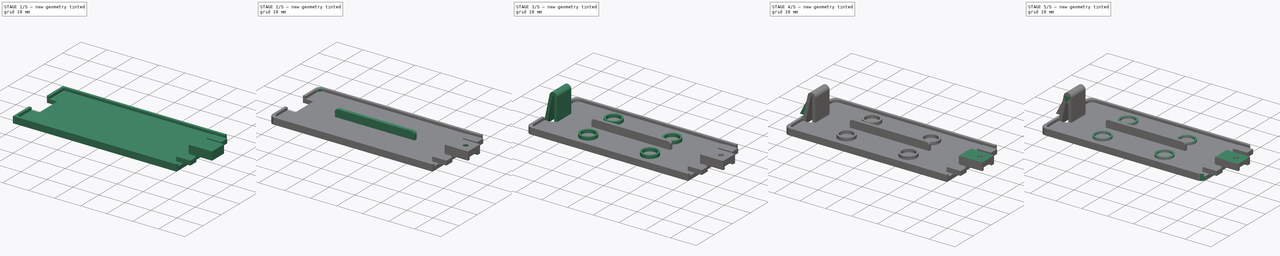
[diagram: build sequence overview — one tinted view per stage of 5, left to right]
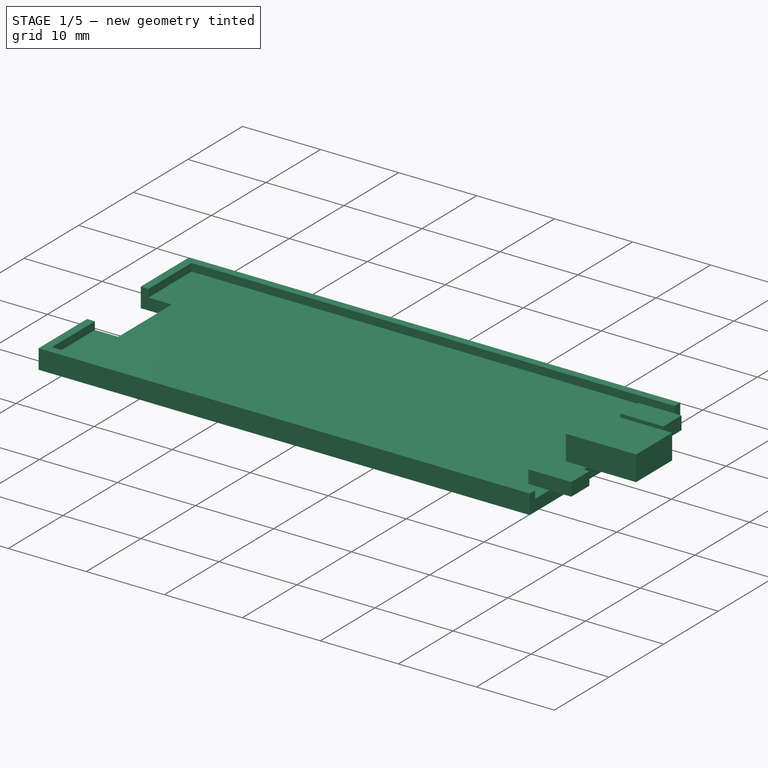
[diagram: stage 1 of 5 — iso view after this stage's code; geometry added in this stage tinted green]
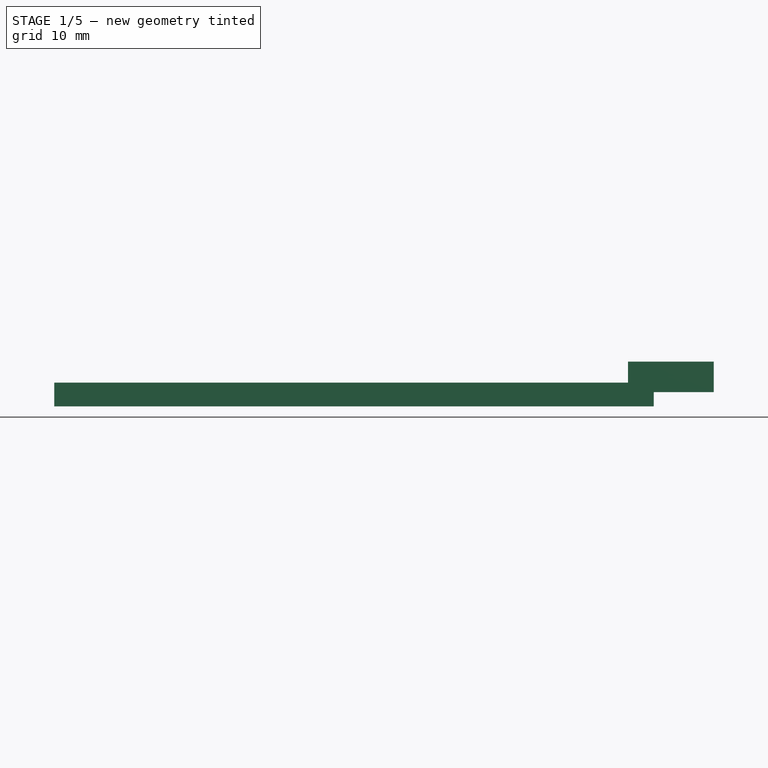
[diagram: stage 1 of 5 — front view after this stage's code; geometry added in this stage tinted green]
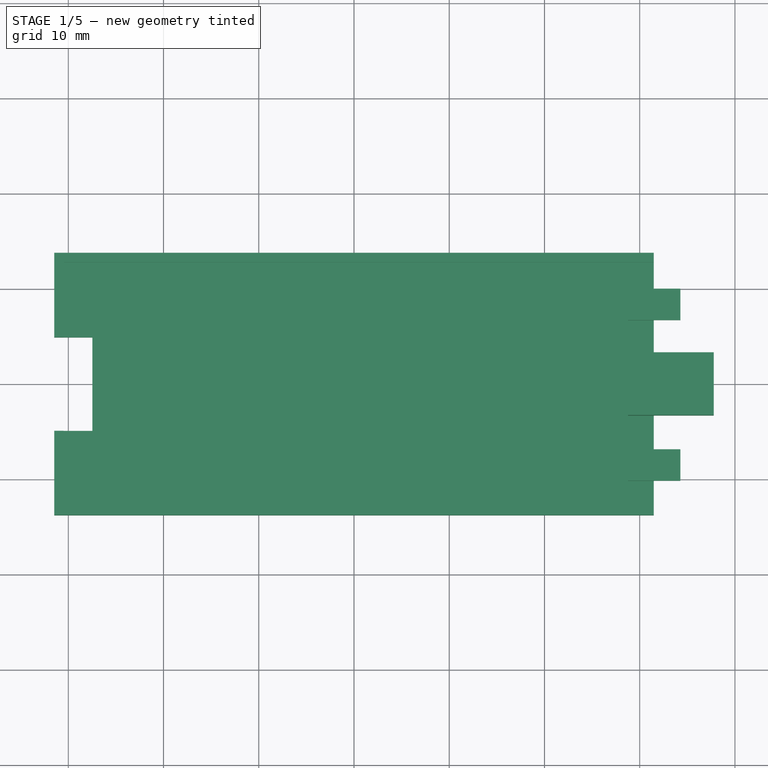
[diagram: stage 1 of 5 — top view after this stage's code; geometry added in this stage tinted green]
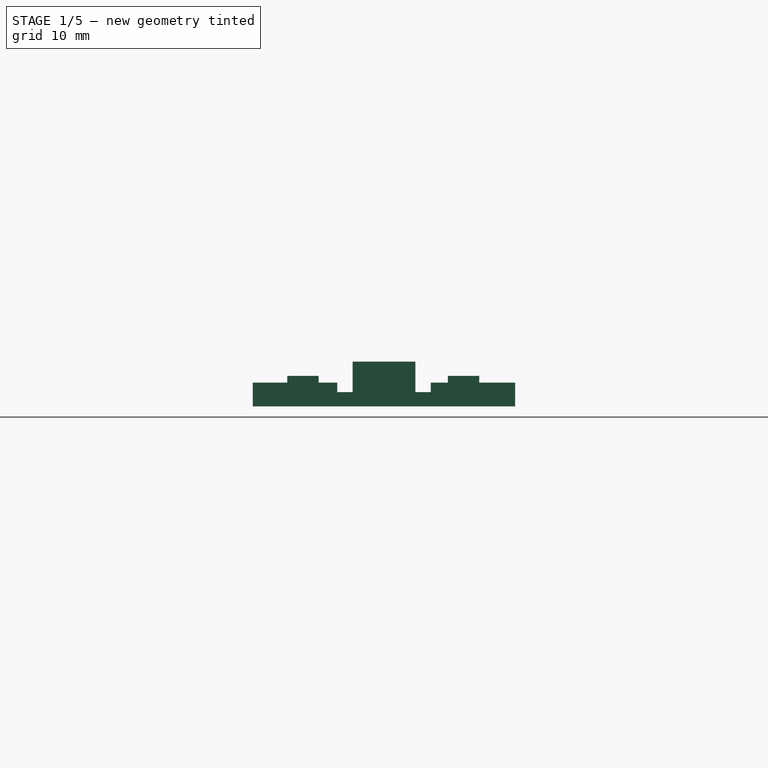
[diagram: stage 1 of 5 — right view after this stage's code; geometry added in this stage tinted green]
FCSTD DOCUMENT  (FreeCAD 0.16R)
Label: tapa
License: All rights reserved
LicenseURL: http://en.wikipedia.org/wiki/All_rights_reserved
objects: Sketcher::SketchObject×22, PartDesign::Pad×11, PartDesign::Pocket×11, PartDesign::Fillet×7
note: 73 computed .brp shape members not serialized (recipe doc carries the construction recipe); baked Part::Feature solids carry a one-line shape summary decoded from their .brp

FEATURE [Sketcher::SketchObject] Sketch
  sketch-geometry (4):
    g0: LineSegment StartX=-31.475 StartY=13.775 StartZ=0 EndX=31.475 EndY=13.775 EndZ=0
    g1: LineSegment StartX=31.475 StartY=13.775 StartZ=0 EndX=31.475 EndY=-13.775 EndZ=0
    g2: LineSegment StartX=31.475 StartY=-13.775 StartZ=0 EndX=-31.475 EndY=-13.775 EndZ=0
    g3: LineSegment StartX=-31.475 StartY=-13.775 StartZ=0 EndX=-31.475 EndY=13.775 EndZ=0
  constraints (12):
    c: Coincident(g0,g1)
    c: Coincident(g1,g2)
    c: Coincident(g2,g3)
    c: Coincident(g3,g0)
    c: Horizontal(g0)
    c: Horizontal(g2)
    c: Vertical(g1)
    c: Vertical(g3)
    c: DistanceY(g3,g3) = 27.55
    c: DistanceX(g0,g0) = 62.95
    c: Symmetric(g2,g1,g-2)
    c: Symmetric(g1,g0,g-1)
FEATURE [PartDesign::Pad] Pad
  Length = 2.5
  Length2 = 100
  Sketch = -> Sketch
  Type = 0
FEATURE [Sketcher::SketchObject] Sketch001
  ExternalGeometry = -> [Pad]
  Placement = pos=(0,0,2.5) rot=(0,0,1;0rad)
  Support = -> Pad [Face6]
  sketch-geometry (4):
    g0: LineSegment StartX=-30.475 StartY=12.775 StartZ=0 EndX=30.475 EndY=12.775 EndZ=0
    g1: LineSegment StartX=30.475 StartY=12.775 StartZ=0 EndX=30.475 EndY=-12.775 EndZ=0
    g2: LineSegment StartX=30.475 StartY=-12.775 StartZ=0 EndX=-30.475 EndY=-12.775 EndZ=0
    g3: LineSegment StartX=-30.475 StartY=-12.775 StartZ=0 EndX=-30.475 EndY=12.775 EndZ=0
  constraints (12):
    c: Coincident(g0,g1)
    c: Coincident(g1,g2)
    c: Coincident(g2,g3)
    c: Coincident(g3,g0)
    c: Horizontal(g0)
    c: Horizontal(g2)
    c: Vertical(g1)
    c: Vertical(g3)
    c: DistanceY(g-4,g2) = 1
    c: DistanceX(g-4,g2) = 1
    c: DistanceY(g0,g-3) = 1
    c: DistanceX(g1,g-4) = 1
FEATURE [PartDesign::Pocket] Pocket
  Length = 1
  Sketch = -> Sketch001
  Type = 0
FEATURE [Sketcher::SketchObject] Sketch002
  ExternalGeometry = -> [Pocket]
  Placement = pos=(0,0,0) rot=(1,0,0;3.14159rad)
  Support = -> Pocket [Face4]
  sketch-geometry (4):
    g0: LineSegment StartX=-35.8099 StartY=4.91 StartZ=0 EndX=-27.475 EndY=4.91 EndZ=0
    g1: LineSegment StartX=-27.475 StartY=4.91 StartZ=0 EndX=-27.475 EndY=-4.91 EndZ=0
    g2: LineSegment StartX=-27.475 StartY=-4.91 StartZ=0 EndX=-35.8099 EndY=-4.91 EndZ=0
    g3: LineSegment StartX=-35.8099 StartY=-4.91 StartZ=0 EndX=-35.8099 EndY=4.91 EndZ=0
  constraints (11):
    c: Coincident(g0,g1)
    c: Coincident(g1,g2)
    c: Coincident(g2,g3)
    c: Coincident(g3,g0)
    c: Horizontal(g0)
    c: Horizontal(g2)
    c: Vertical(g1)
    c: Vertical(g3)
    c: DistanceX(g-3,g1) = 4
    c: DistanceY(g3,g3) = 9.82
    c: Symmetric(g1,g0,g-1)
FEATURE [PartDesign::Pocket] Pocket001
  Length = 5
  Sketch = -> Sketch002
  Type = 0
FEATURE [Sketcher::SketchObject] Sketch003
  ExternalGeometry = -> [Pocket001]
  Placement = pos=(30.475,0,0) rot=(0.57735,-0.57735,-0.57735;2.0944rad)
  Support = -> Pocket001 [Face13]
  sketch-geometry (4):
    g0: LineSegment StartX=-12.775 StartY=5.69858 StartZ=0 EndX=12.775 EndY=5.69858 EndZ=0
    g1: LineSegment StartX=12.775 StartY=5.69858 StartZ=0 EndX=12.775 EndY=1.5 EndZ=0
    g2: LineSegment StartX=12.775 StartY=1.5 StartZ=0 EndX=-12.775 EndY=1.5 EndZ=0
    g3: LineSegment StartX=-12.775 StartY=1.5 StartZ=0 EndX=-12.775 EndY=5.69858 EndZ=0
  constraints (10):
    c: Coincident(g0,g1)
    c: Coincident(g1,g2)
    c: Coincident(g2,g3)
    c: Coincident(g3,g0)
    c: Horizontal(g0)
    c: Horizontal(g2)
    c: Vertical(g1)
    c: Vertical(g3)
    c: Coincident(g-3,g2)
    c: Coincident(g1,g-3)
FEATURE [PartDesign::Pocket] Pocket002
  Length = 5
  Sketch = -> Sketch003
  Type = 0
FEATURE [Sketcher::SketchObject] Sketch004
  ExternalGeometry = -> [Pocket002]
  Placement = pos=(0,0,1.5) rot=(0,0,1;0rad)
  Support = -> Pocket002 [Face15]
  sketch-geometry (12):
    g0: LineSegment StartX=28.775 StartY=10.0059 StartZ=0 EndX=34.275 EndY=10.0059 EndZ=0
    g1: LineSegment StartX=34.275 StartY=10.0059 StartZ=0 EndX=34.275 EndY=6.70589 EndZ=0
    g2: LineSegment StartX=34.275 StartY=6.70589 StartZ=0 EndX=28.775 EndY=6.70589 EndZ=0
    g3: LineSegment StartX=28.775 StartY=6.70589 StartZ=0 EndX=28.775 EndY=10.0059 EndZ=0
    g4: LineSegment StartX=28.775 StartY=-6.86222 StartZ=0 EndX=34.275 EndY=-6.86222 EndZ=0
    g5: LineSegment StartX=34.275 StartY=-6.86222 StartZ=0 EndX=34.275 EndY=-10.1622 EndZ=0
    g6: LineSegment StartX=34.275 StartY=-10.1622 StartZ=0 EndX=28.775 EndY=-10.1622 EndZ=0
    g7: LineSegment StartX=28.775 StartY=-10.1622 StartZ=0 EndX=28.775 EndY=-6.86222 EndZ=0
    g8: LineSegment StartX=28.775 StartY=3.3 StartZ=0 EndX=37.775 EndY=3.3 EndZ=0
    g9: LineSegment StartX=37.775 StartY=3.3 StartZ=0 EndX=37.775 EndY=-3.3 EndZ=0
    g10: LineSegment StartX=37.775 StartY=-3.3 StartZ=0 EndX=28.775 EndY=-3.3 EndZ=0
    g11: LineSegment StartX=28.775 StartY=-3.3 StartZ=0 EndX=28.775 EndY=3.3 EndZ=0
  constraints (34):
    c: Coincident(g0,g1)
    c: Coincident(g1,g2)
    c: Coincident(g2,g3)
    c: Coincident(g3,g0)
    c: Horizontal(g0)
    c: Horizontal(g2)
    c: Vertical(g1)
    c: Vertical(g3)
    c: Coincident(g4,g5)
    c: Coincident(g5,g6)
    c: Coincident(g6,g7)
    c: Coincident(g7,g4)
    c: Horizontal(g4)
    c: Horizontal(g6)
    c: Vertical(g5)
    c: Vertical(g7)
    c: Coincident(g8,g9)
    c: Coincident(g9,g10)
    c: Coincident(g10,g11)
    c: Coincident(g11,g8)
    c: Horizontal(g8)
    c: Horizontal(g10)
    c: Vertical(g9)
    c: Vertical(g11)
    c: DistanceY(g3,g3) = 3.3
    c: DistanceY(g7,g7) = 3.3
    c: DistanceX(g6,g6) = 5.5
    c: DistanceX(g0,g0) = 5.5
    c: DistanceY(g9,g9) = 6.6
    c: DistanceX(g8,g8) = 9
    c: Symmetric(g10,g8,g-1)
    c: DistanceX(g10,g4) = 0
    c: DistanceX(g2,g8) = 0
    c: DistanceX(g-3,g8) = 6.3
FEATURE [PartDesign::Pad] Pad001
  Length = 1.7
  Length2 = 100
  Sketch = -> Sketch004
  Type = 0
FEATURE [Sketcher::SketchObject] Sketch005
  ExternalGeometry = -> [Pad001]
  Placement = pos=(0,0,3.2) rot=(0,0,1;0rad)
  Support = -> Pad001 [Face33]
  sketch-geometry (4):
    g0: LineSegment StartX=28.775 StartY=3.3 StartZ=0 EndX=37.775 EndY=3.3 EndZ=0
    g1: LineSegment StartX=37.775 StartY=3.3 StartZ=0 EndX=37.775 EndY=-3.3 EndZ=0
    g2: LineSegment StartX=37.775 StartY=-3.3 StartZ=0 EndX=28.775 EndY=-3.3 EndZ=0
    g3: LineSegment StartX=28.775 StartY=-3.3 StartZ=0 EndX=28.775 EndY=3.3 EndZ=0
  constraints (10):
    c: Coincident(g0,g1)
    c: Coincident(g1,g2)
    c: Coincident(g2,g3)
    c: Coincident(g3,g0)
    c: Horizontal(g0)
    c: Horizontal(g2)
    c: Vertical(g1)
    c: Vertical(g3)
    c: Coincident(g1,g-4)
    c: Coincident(g0,g-3)
FEATURE [PartDesign::Pad] Pad002
  Length = 1.5
  Length2 = 100
  Sketch = -> Sketch005
  Type = 0
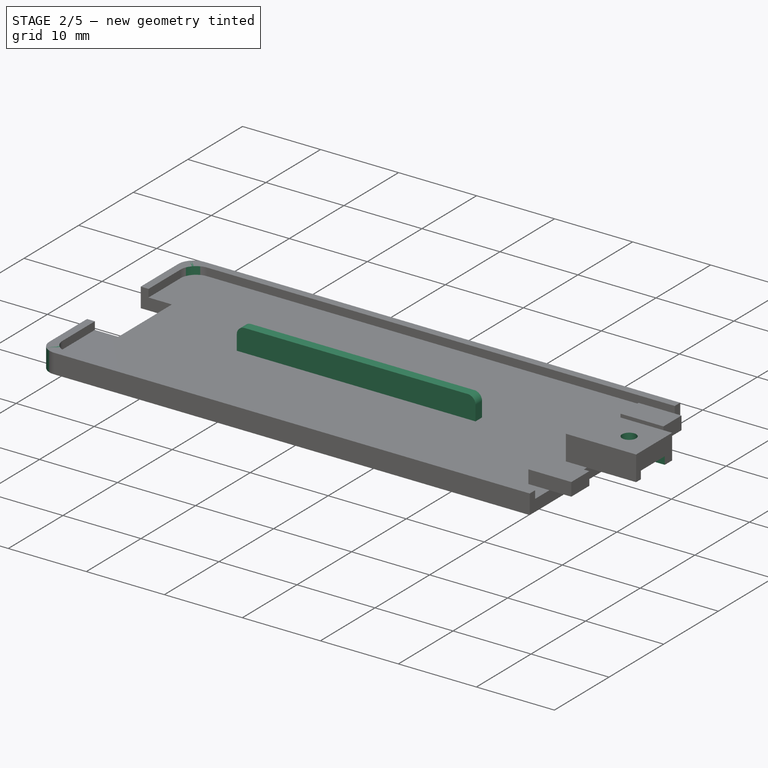
[diagram: stage 2 of 5 — iso view after this stage's code; geometry added in this stage tinted green]
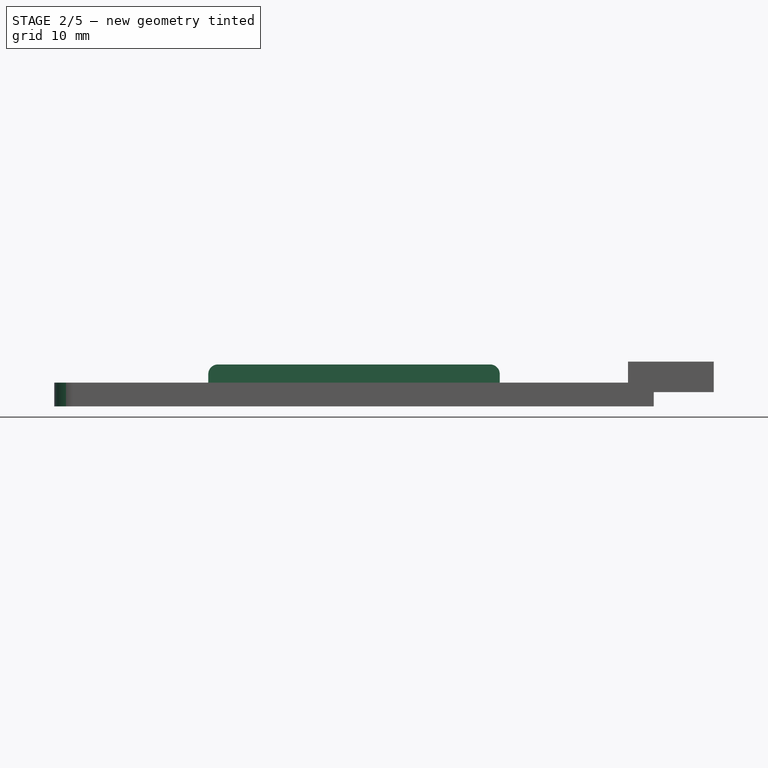
[diagram: stage 2 of 5 — front view after this stage's code; geometry added in this stage tinted green]
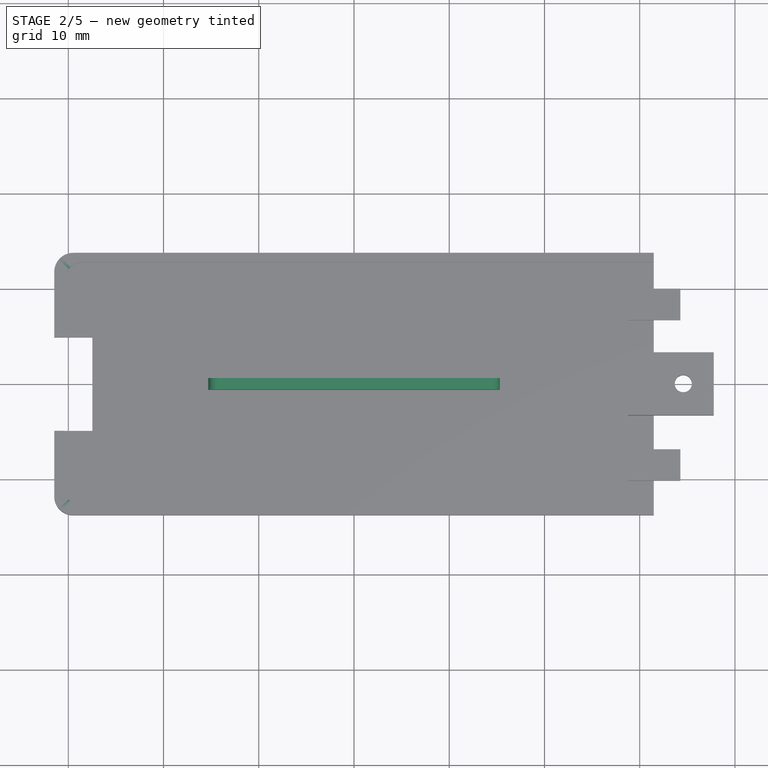
[diagram: stage 2 of 5 — top view after this stage's code; geometry added in this stage tinted green]
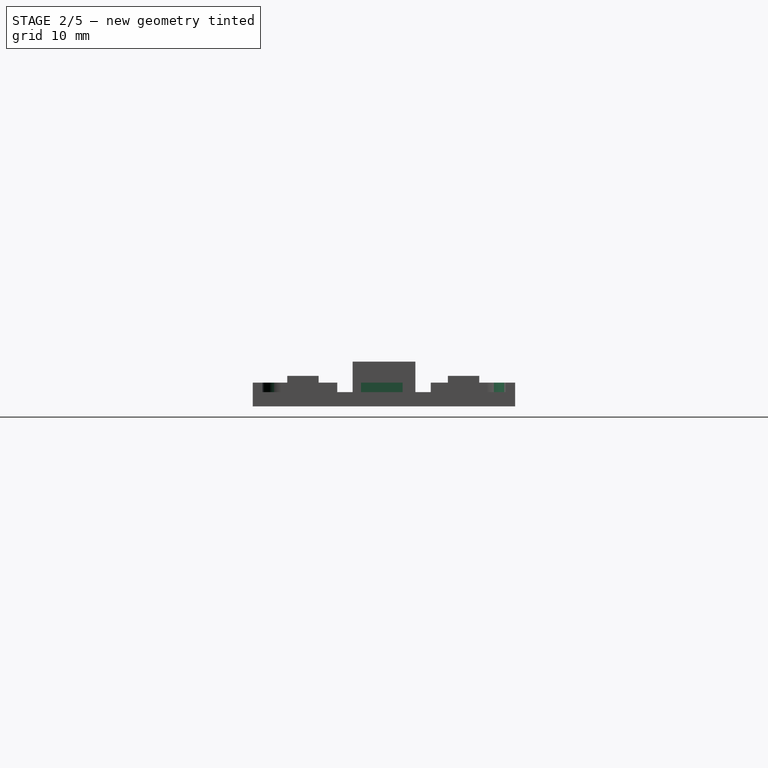
[diagram: stage 2 of 5 — right view after this stage's code; geometry added in this stage tinted green]
FEATURE [Sketcher::SketchObject] Sketch006
  ExternalGeometry = -> [Pad002]
  Placement = pos=(0,0,1.5) rot=(1,0,0;3.14159rad)
  Support = -> Pad002 [Face16]
  sketch-geometry (4):
    g0: LineSegment StartX=31.475 StartY=2.41848 StartZ=0 EndX=42.8898 EndY=2.41848 EndZ=0
    g1: LineSegment StartX=42.8898 StartY=2.41848 StartZ=0 EndX=42.8898 EndY=-1.95152 EndZ=0
    g2: LineSegment StartX=42.8898 StartY=-1.95152 StartZ=0 EndX=31.475 EndY=-1.95152 EndZ=0
    g3: LineSegment StartX=31.475 StartY=-1.95152 StartZ=0 EndX=31.475 EndY=2.41848 EndZ=0
  constraints (10):
    c: Coincident(g0,g1)
    c: Coincident(g1,g2)
    c: Coincident(g2,g3)
    c: Coincident(g3,g0)
    c: Horizontal(g0)
    c: Horizontal(g2)
    c: Vertical(g1)
    c: Vertical(g3)
    c: PointOnObject(g0,g-3)
    c: DistanceY(g1,g1) = 4.37
FEATURE [PartDesign::Pocket] Pocket003
  Length = 1
  Sketch = -> Sketch006
  Type = 0
FEATURE [Sketcher::SketchObject] Sketch007
  ExternalGeometry = -> [Pocket003]
  Placement = pos=(0,0,4.7) rot=(0,0,1;0rad)
  Support = -> Pocket003 [Face1]
  sketch-geometry (1):
    g0: Circle CenterX=34.575 CenterY=0 CenterZ=0 NormalX=0 NormalY=0 NormalZ=1 Radius=0.9
  constraints (3):
    c: PointOnObject(g0,g-1)
    c: DistanceX(g0,g-3) = 3.2
    c: Radius(g0) = 0.9
FEATURE [PartDesign::Pocket] Pocket004
  Length = 5
  Sketch = -> Sketch007
  Type = 0
FEATURE [PartDesign::Fillet] Fillet
  Base = -> Pocket004 [Edge96,Edge103]
  Radius = 2
FEATURE [PartDesign::Fillet] Fillet001
  Base = -> Fillet [Edge51,Edge83]
  Radius = 2
FEATURE [Sketcher::SketchObject] Sketch008
  Placement = pos=(0,0,1.5) rot=(0,0,1;0rad)
  Support = -> Fillet001 [Face10]
  sketch-geometry (4):
    g0: LineSegment StartX=-15.3 StartY=0.6 StartZ=0 EndX=15.3 EndY=0.6 EndZ=0
    g1: LineSegment StartX=15.3 StartY=0.6 StartZ=0 EndX=15.3 EndY=-0.6 EndZ=0
    g2: LineSegment StartX=15.3 StartY=-0.6 StartZ=0 EndX=-15.3 EndY=-0.6 EndZ=0
    g3: LineSegment StartX=-15.3 StartY=-0.6 StartZ=0 EndX=-15.3 EndY=0.6 EndZ=0
  constraints (12):
    c: Coincident(g0,g1)
    c: Coincident(g1,g2)
    c: Coincident(g2,g3)
    c: Coincident(g3,g0)
    c: Horizontal(g0)
    c: Horizontal(g2)
    c: Vertical(g1)
    c: Vertical(g3)
    c: DistanceY(g3,g3) = 1.2
    c: DistanceX(g2,g2) = 30.6
    c: Symmetric(g1,g0,g-1)
    c: Symmetric(g0,g0,g-2)
FEATURE [PartDesign::Pad] Pad003
  Length = 2.9
  Length2 = 100
  Sketch = -> Sketch008
  Type = 0
FEATURE [PartDesign::Fillet] Fillet002
  Base = -> Pad003 [Edge2,Edge4]
  Radius = 1
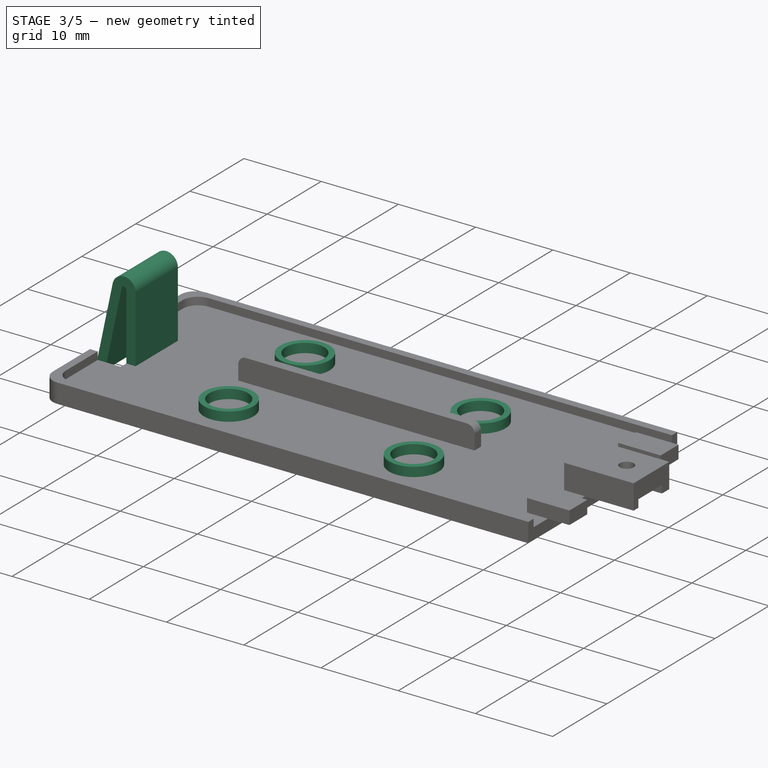
[diagram: stage 3 of 5 — iso view after this stage's code; geometry added in this stage tinted green]
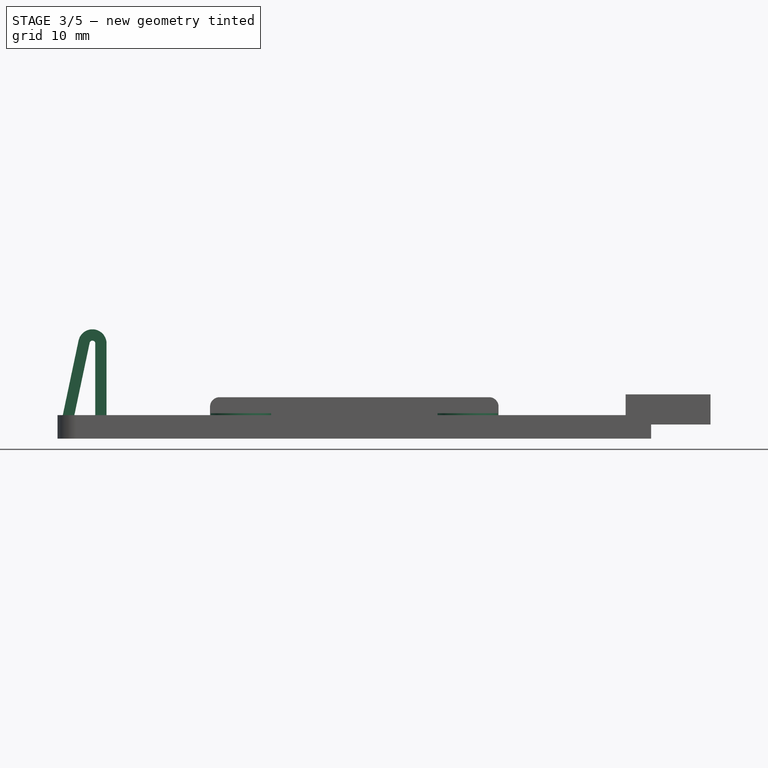
[diagram: stage 3 of 5 — front view after this stage's code; geometry added in this stage tinted green]
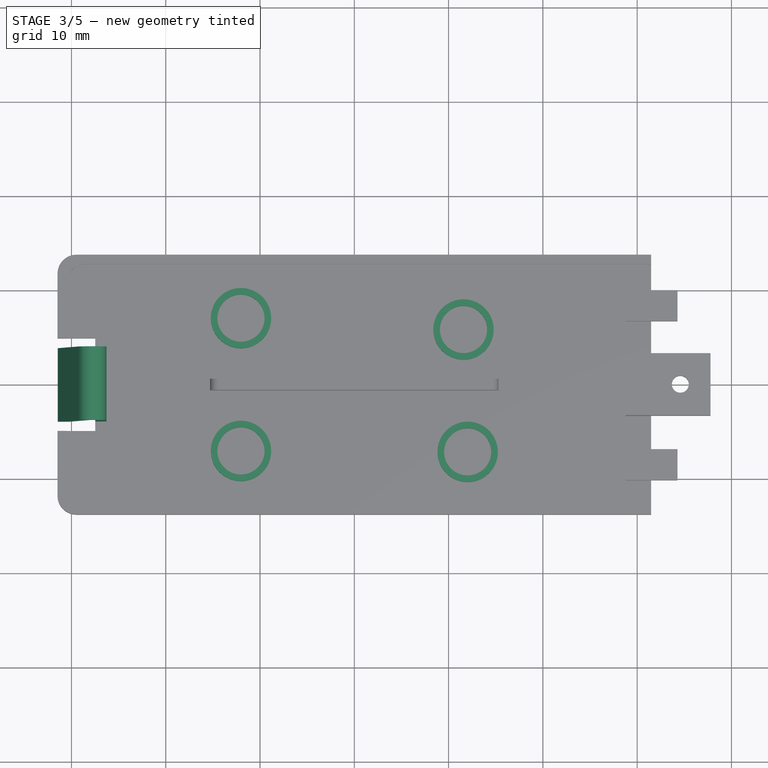
[diagram: stage 3 of 5 — top view after this stage's code; geometry added in this stage tinted green]
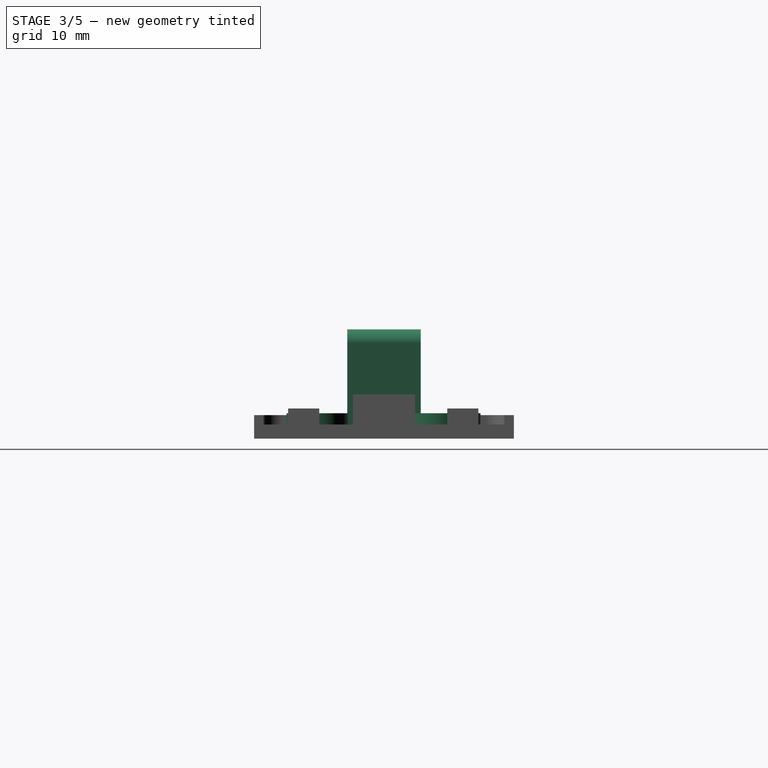
[diagram: stage 3 of 5 — right view after this stage's code; geometry added in this stage tinted green]
FEATURE [Sketcher::SketchObject] Sketch009
  Placement = pos=(0,0,1.5) rot=(0,0,1;0rad)
  Support = -> Fillet002 [Face7]
  sketch-geometry (8):
    g0: Circle CenterX=-12.02 CenterY=7.04155 CenterZ=0 NormalX=0 NormalY=0 NormalZ=1 Radius=3.2
    g1: Circle CenterX=11.58 CenterY=5.83993 CenterZ=0 NormalX=0 NormalY=0 NormalZ=1 Radius=3.2
    g2: Circle CenterX=12.02 CenterY=-7.13927 CenterZ=0 NormalX=0 NormalY=0 NormalZ=1 Radius=3.2
    g3: Circle CenterX=-12.02 CenterY=-7.04155 CenterZ=0 NormalX=0 NormalY=0 NormalZ=1 Radius=3.2
    g4: Circle CenterX=-12.02 CenterY=7.04155 CenterZ=0 NormalX=0 NormalY=0 NormalZ=1 Radius=2.5
    g5: Circle CenterX=11.58 CenterY=5.83993 CenterZ=0 NormalX=0 NormalY=0 NormalZ=1 Radius=2.5
    g6: Circle CenterX=12.02 CenterY=-7.13927 CenterZ=0 NormalX=0 NormalY=0 NormalZ=1 Radius=2.5
    g7: Circle CenterX=-12.02 CenterY=-7.04155 CenterZ=0 NormalX=0 NormalY=0 NormalZ=1 Radius=2.5
  constraints (14):
    c: Symmetric(g3,g0,g-1)
    c: Equal(g3,g0)
    c: Equal(g0,g1)
    c: Equal(g1,g2)
    c: Radius(g3) = 3.2
    c: DistanceX(g0,g1) = 23.6
    c: Coincident(g4,g0)
    c: Coincident(g5,g1)
    c: Coincident(g6,g2)
    c: Coincident(g7,g3)
    c: Equal(g7,g4)
    c: Equal(g4,g5)
    c: Equal(g5,g6)
    c: Radius(g7) = 2.5
FEATURE [PartDesign::Pad] Pad004
  Length = 1.2
  Length2 = 100
  Sketch = -> Sketch009
  Type = 0
FEATURE [Sketcher::SketchObject] Sketch010
  ExternalGeometry = -> [Pad004]
  Placement = pos=(0,0,1.5) rot=(0,0,1;0rad)
  Support = -> Pad004 [Face7]
  sketch-geometry (4):
    g0: LineSegment StartX=-27.475 StartY=4.91 StartZ=0 EndX=-26.275 EndY=4.91 EndZ=0
    g1: LineSegment StartX=-26.275 StartY=4.91 StartZ=0 EndX=-26.275 EndY=-4.91 EndZ=0
    g2: LineSegment StartX=-26.275 StartY=-4.91 StartZ=0 EndX=-27.475 EndY=-4.91 EndZ=0
    g3: LineSegment StartX=-27.475 StartY=-4.91 StartZ=0 EndX=-27.475 EndY=4.91 EndZ=0
  constraints (11):
    c: Coincident(g0,g1)
    c: Coincident(g1,g2)
    c: Coincident(g2,g3)
    c: Coincident(g3,g0)
    c: Horizontal(g0)
    c: Horizontal(g2)
    c: Vertical(g1)
    c: Vertical(g3)
    c: Coincident(g2,g-3)
    c: Coincident(g0,g-3)
    c: DistanceX(g0,g0) = 1.2
FEATURE [PartDesign::Pad] Pad005
  Length = 8.6
  Length2 = 100
  Sketch = -> Sketch010
  Type = 0
FEATURE [Sketcher::SketchObject] Sketch011
  ExternalGeometry = -> [Pad005]
  Placement = pos=(0,-4.91,0) rot=(1,0,0;1.5708rad)
  Support = -> Pad005 [Face24]
  sketch-geometry (7):
    g0: ArcOfCircle CenterX=-27.775 CenterY=10.1 CenterZ=0 NormalX=0 NormalY=0 NormalZ=1 Radius=1.5 StartAngle=0 EndAngle=2.93303
    g1: ArcOfCircle CenterX=-27.775 CenterY=10.1 CenterZ=0 NormalX=0 NormalY=0 NormalZ=1 Radius=0.3 StartAngle=0 EndAngle=2.93303
    g2: LineSegment StartX=-29.2425 StartY=10.4106 StartZ=0 EndX=-31.4458 EndY=0 EndZ=0
    g3: LineSegment StartX=-28.0685 StartY=10.1621 StartZ=0 EndX=-30.2192 EndY=0 EndZ=0
    g4: LineSegment [constr] StartX=-30.1153 StartY=6.28656 StartZ=0 EndX=-28.9413 EndY=6.0381 EndZ=0
    g5: LineSegment StartX=-30.2192 StartY=0 StartZ=0 EndX=-31.4458 EndY=0 EndZ=0
    g6: LineSegment StartX=-26.275 StartY=10.1 StartZ=0 EndX=-27.475 EndY=10.1 EndZ=0
  constraints (19):
    c: Coincident(g0,g-3)
    c: Radius(g0) = 1.5
    c: DistanceY(g0,g0) = 0
    c: Coincident(g1,g0)
    c: Coincident(g1,g-4)
    c: Coincident(g2,g0)
    c: Coincident(g3,g1)
    c: Tangent(g0,g2)
    c: Tangent(g1,g3)
    c: PointOnObject(g4,g2)
    c: PointOnObject(g4,g3)
    c: Perpendicular(g3,g4)
    c: Perpendicular(g4,g2)
    c: Coincident(g5,g3)
    c: Coincident(g5,g2)
    c: PointOnObject(g3,g-1)
    c: PointOnObject(g2,g-1)
    c: Coincident(g6,g0)
    c: Coincident(g6,g1)
FEATURE [PartDesign::Pad] Pad006
  Length = 9.8
  Length2 = 100
  Reversed = true
  Sketch = -> Sketch011
  Type = 0
FEATURE [Sketcher::SketchObject] Sketch012
  ExternalGeometry = -> [Pad006]
  Placement = pos=(-26.275,0,0) rot=(0.57735,0.57735,0.57735;2.0944rad)
  Support = -> Pad006 [Face18]
  sketch-geometry (8):
    g0: LineSegment StartX=-4.91 StartY=13.6592 StartZ=0 EndX=-3.9 EndY=13.6592 EndZ=0
    g1: LineSegment StartX=-3.9 StartY=13.6592 StartZ=0 EndX=-3.9 EndY=1.5 EndZ=0
    g2: LineSegment StartX=-3.9 StartY=1.5 StartZ=0 EndX=-4.91 EndY=1.5 EndZ=0
    g3: LineSegment StartX=-4.91 StartY=1.5 StartZ=0 EndX=-4.91 EndY=13.6592 EndZ=0
    g4: LineSegment StartX=3.9 StartY=13.6592 StartZ=0 EndX=4.91 EndY=13.6592 EndZ=0
    g5: LineSegment StartX=4.91 StartY=13.6592 StartZ=0 EndX=4.91 EndY=1.5 EndZ=0
    g6: LineSegment StartX=4.91 StartY=1.5 StartZ=0 EndX=3.9 EndY=1.5 EndZ=0
    g7: LineSegment StartX=3.9 StartY=1.5 StartZ=0 EndX=3.9 EndY=13.6592 EndZ=0
  constraints (22):
    c: Coincident(g0,g1)
    c: Coincident(g1,g2)
    c: Coincident(g2,g3)
    c: Coincident(g3,g0)
    c: Horizontal(g0)
    c: Horizontal(g2)
    c: Vertical(g1)
    c: Vertical(g3)
    c: Coincident(g4,g5)
    c: Coincident(g5,g6)
    c: Coincident(g6,g7)
    c: Coincident(g7,g4)
    c: Horizontal(g4)
    c: Horizontal(g6)
    c: Vertical(g5)
    c: Vertical(g7)
    c: PointOnObject(g1,g-3)
    c: PointOnObject(g6,g-3)
    c: DistanceX(g0,g4) = 7.8
    c: Symmetric(g0,g4,g-2)
    c: Coincident(g-3,g5)
    c: Coincident(g2,g-3)
FEATURE [PartDesign::Pocket] Pocket005
  Length = 5
  Sketch = -> Sketch012
  Type = 0
FEATURE [Sketcher::SketchObject] Sketch013
  ExternalGeometry = -> [Pocket005]
  Placement = pos=(0,0,1.5) rot=(0,0,1;0rad)
  Support = -> Pocket005 [Face50]
  sketch-geometry (8):
    g0: LineSegment StartX=-31.8211 StartY=3.9 StartZ=0 EndX=-29.9017 EndY=3.9 EndZ=0
    g1: LineSegment StartX=-29.9017 StartY=3.9 StartZ=0 EndX=-29.9017 EndY=4.89 EndZ=0
    g2: LineSegment StartX=-29.9017 StartY=4.89 StartZ=0 EndX=-31.8211 EndY=4.89 EndZ=0
    g3: LineSegment StartX=-31.8211 StartY=4.89 StartZ=0 EndX=-31.8211 EndY=3.9 EndZ=0
    g4: LineSegment StartX=-31.9183 StartY=-3.9 StartZ=0 EndX=-29.9017 EndY=-3.9 EndZ=0
    g5: LineSegment StartX=-29.9017 StartY=-3.9 StartZ=0 EndX=-29.9017 EndY=-4.91 EndZ=0
    g6: LineSegment StartX=-29.9017 StartY=-4.91 StartZ=0 EndX=-31.9183 EndY=-4.91 EndZ=0
    g7: LineSegment StartX=-31.9183 StartY=-4.91 StartZ=0 EndX=-31.9183 EndY=-3.9 EndZ=0
  constraints (20):
    c: Coincident(g0,g1)
    c: Coincident(g1,g2)
    c: Coincident(g2,g3)
    c: Coincident(g3,g0)
    c: Horizontal(g0)
    c: Horizontal(g2)
    c: Vertical(g1)
    c: Vertical(g3)
    c: Coincident(g-4,g0)
    c: Coincident(g1,g-3)
    c: Coincident(g4,g5)
    c: Coincident(g5,g6)
    c: Coincident(g6,g7)
    c: Coincident(g7,g4)
    c: Horizontal(g4)
    c: Horizontal(g6)
    c: Vertical(g5)
    c: Vertical(g7)
    c: Coincident(g4,g-5)
    c: PointOnObject(g-6,g6)
FEATURE [PartDesign::Pocket] Pocket006
  Length = 5
  Sketch = -> Sketch013
  Type = 0
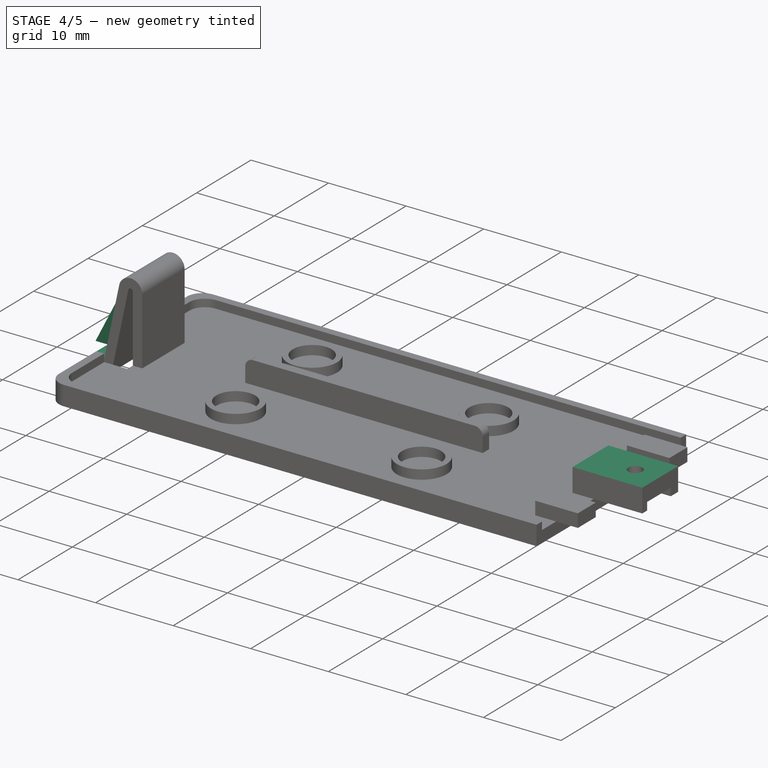
[diagram: stage 4 of 5 — iso view after this stage's code; geometry added in this stage tinted green]
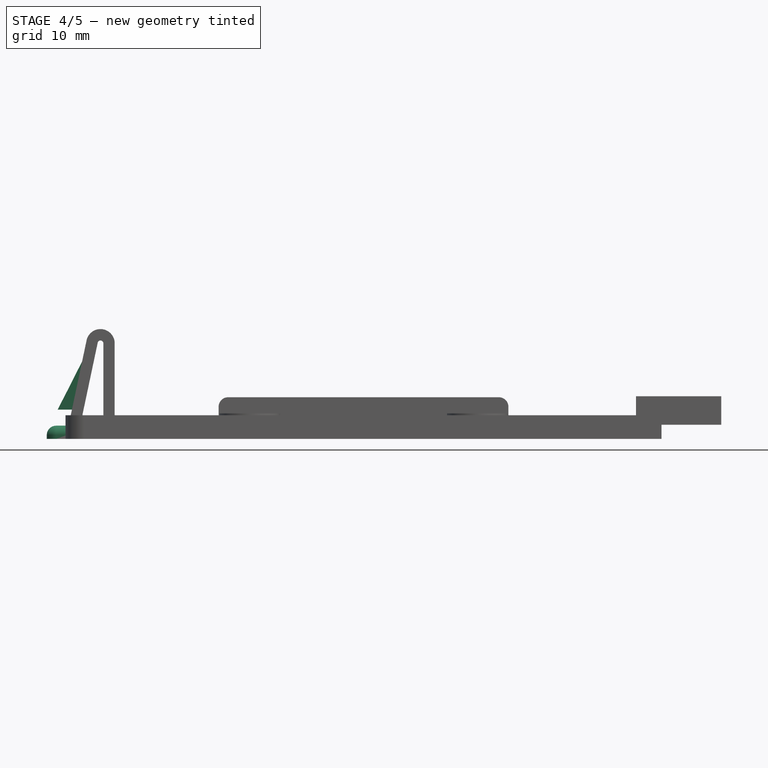
[diagram: stage 4 of 5 — front view after this stage's code; geometry added in this stage tinted green]
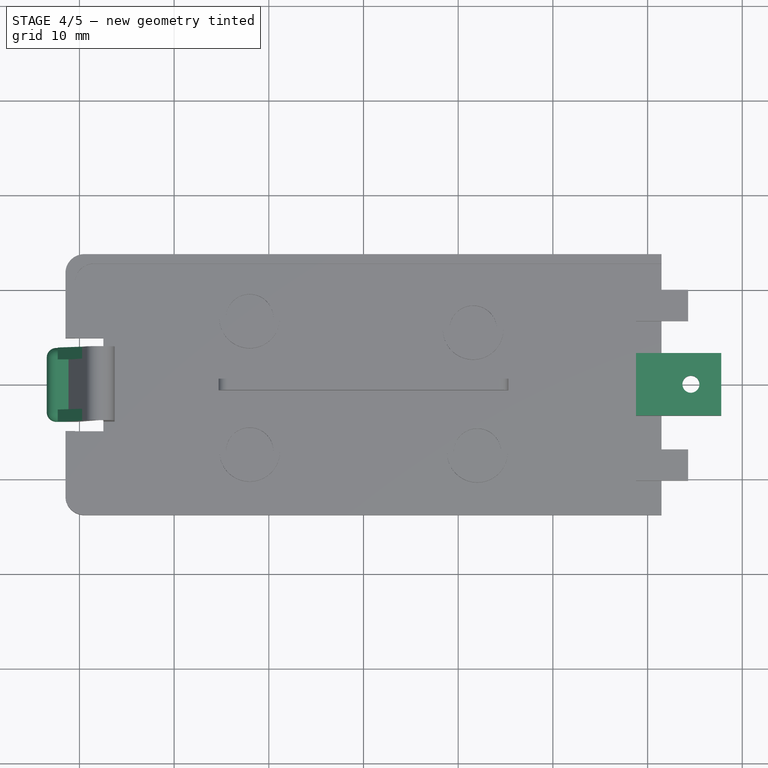
[diagram: stage 4 of 5 — top view after this stage's code; geometry added in this stage tinted green]
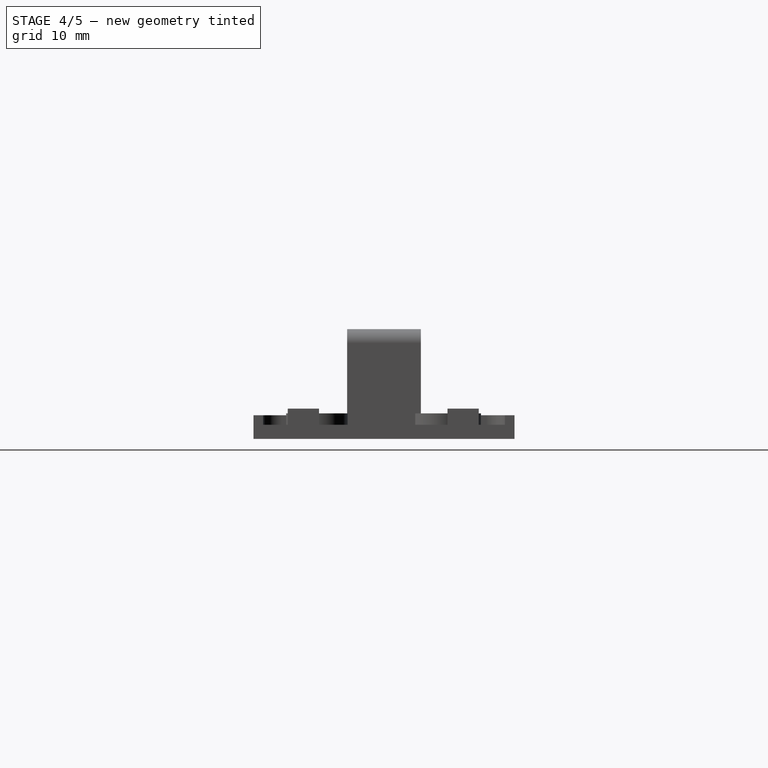
[diagram: stage 4 of 5 — right view after this stage's code; geometry added in this stage tinted green]
FEATURE [Sketcher::SketchObject] Sketch014
  ExternalGeometry = -> [Pocket006]
  Placement = pos=(0,-3.9,0) rot=(1,0,0;1.5708rad)
  Support = -> Pocket006 [Face72]
  sketch-geometry (4):
    g0: LineSegment StartX=-33.4458 StartY=1.4 StartZ=0 EndX=-30.2192 EndY=1.4 EndZ=0
    g1: LineSegment StartX=-30.2192 StartY=1.4 StartZ=0 EndX=-30.2192 EndY=0 EndZ=0
    g2: LineSegment StartX=-30.2192 StartY=0 StartZ=0 EndX=-33.4458 EndY=0 EndZ=0
    g3: LineSegment StartX=-33.4458 StartY=0 StartZ=0 EndX=-33.4458 EndY=1.4 EndZ=0
  constraints (11):
    c: Coincident(g0,g1)
    c: Coincident(g1,g2)
    c: Coincident(g2,g3)
    c: Coincident(g3,g0)
    c: Horizontal(g0)
    c: Horizontal(g2)
    c: Vertical(g1)
    c: Vertical(g3)
    c: Coincident(g-3,g1)
    c: DistanceY(g3,g3) = 1.4
    c: DistanceX(g2,g1) = 3.22658
FEATURE [PartDesign::Pad] Pad007
  Length = 7.8
  Length2 = 100
  Reversed = true
  Sketch = -> Sketch014
  Type = 0
FEATURE [PartDesign::Fillet] Fillet003
  Base = -> Pad007 [Edge186,Edge187]
  Radius = 1
FEATURE [PartDesign::Fillet] Fillet004
  Base = -> Fillet003 [Edge4]
  Radius = 1
FEATURE [Sketcher::SketchObject] Sketch015
  ExternalGeometry = -> [Fillet004]
  Placement = pos=(0,-3.9,0) rot=(1,0,0;1.5708rad)
  Support = -> Fillet004 [Face7]
  sketch-geometry (3):
    g0: LineSegment StartX=-30.7897 StartY=3.1 StartZ=0 EndX=-32.2897 EndY=3.1 EndZ=0
    g1: LineSegment StartX=-32.2897 StartY=3.1 StartZ=0 EndX=-29.7186 EndY=8.16089 EndZ=0
    g2: LineSegment StartX=-29.7186 StartY=8.16089 StartZ=0 EndX=-30.7897 EndY=3.1 EndZ=0
  constraints (8):
    c: Coincident(g0,g1)
    c: PointOnObject(g1,g-3)
    c: Coincident(g1,g2)
    c: Coincident(g2,g0)
    c: PointOnObject(g0,g-3)
    c: Horizontal(g0)
    c: DistanceX(g0,g0) = 1.5
    c: DistanceY(g0) = 3.1
FEATURE [PartDesign::Pad] Pad008
  Length = 7.8
  Length2 = 100
  Reversed = true
  Sketch = -> Sketch015
  Type = 0
FEATURE [Sketcher::SketchObject] Sketch016
  ExternalGeometry = -> [Pad008]
  Placement = pos=(-30.0977,0,6.36977) rot=(0.532833,-0.532833,-0.657402;1.97847rad)
  Support = -> Pad008 [Face17]
  sketch-geometry (4):
    g0: LineSegment StartX=-2.65 StartY=2.40593 StartZ=0 EndX=2.65 EndY=2.40593 EndZ=0
    g1: LineSegment StartX=2.65 StartY=2.40593 StartZ=0 EndX=2.65 EndY=-4.50293 EndZ=0
    g2: LineSegment StartX=2.65 StartY=-4.50293 StartZ=0 EndX=-2.65 EndY=-4.50293 EndZ=0
    g3: LineSegment StartX=-2.65 StartY=-4.50293 StartZ=0 EndX=-2.65 EndY=2.40593 EndZ=0
  constraints (10):
    c: Coincident(g0,g1)
    c: Coincident(g1,g2)
    c: Coincident(g2,g3)
    c: Coincident(g3,g0)
    c: Horizontal(g0)
    c: Horizontal(g2)
    c: Vertical(g1)
    c: Vertical(g3)
    c: DistanceX(g2,g2) = 5.3
    c: Symmetric(g0,g0,g-2)
FEATURE [PartDesign::Pocket] Pocket007
  Length = 5
  Reversed = true
  Sketch = -> Sketch016
  Type = 0
FEATURE [Sketcher::SketchObject] Sketch017
  ExternalGeometry = -> [Pocket007]
  Placement = pos=(37.775,0,0) rot=(0.57735,0.57735,0.57735;2.0944rad)
  Support = -> Pocket007 [Face67]
  sketch-geometry (4):
    g0: LineSegment StartX=-3.49643 StartY=5.77086 StartZ=0 EndX=3.84996 EndY=5.77086 EndZ=0
    g1: LineSegment StartX=3.84996 StartY=5.77086 StartZ=0 EndX=3.84996 EndY=4.5 EndZ=0
    g2: LineSegment StartX=3.84996 StartY=4.5 StartZ=0 EndX=-3.49643 EndY=4.5 EndZ=0
    g3: LineSegment StartX=-3.49643 StartY=4.5 StartZ=0 EndX=-3.49643 EndY=5.77086 EndZ=0
  constraints (9):
    c: Coincident(g0,g1)
    c: Coincident(g1,g2)
    c: Coincident(g2,g3)
    c: Coincident(g3,g0)
    c: Horizontal(g0)
    c: Horizontal(g2)
    c: Vertical(g1)
    c: Vertical(g3)
    c: DistanceY(g1,g-3) = 0.2
FEATURE [PartDesign::Pocket] Pocket008
  Length = 12
  Sketch = -> Sketch017
  Type = 0
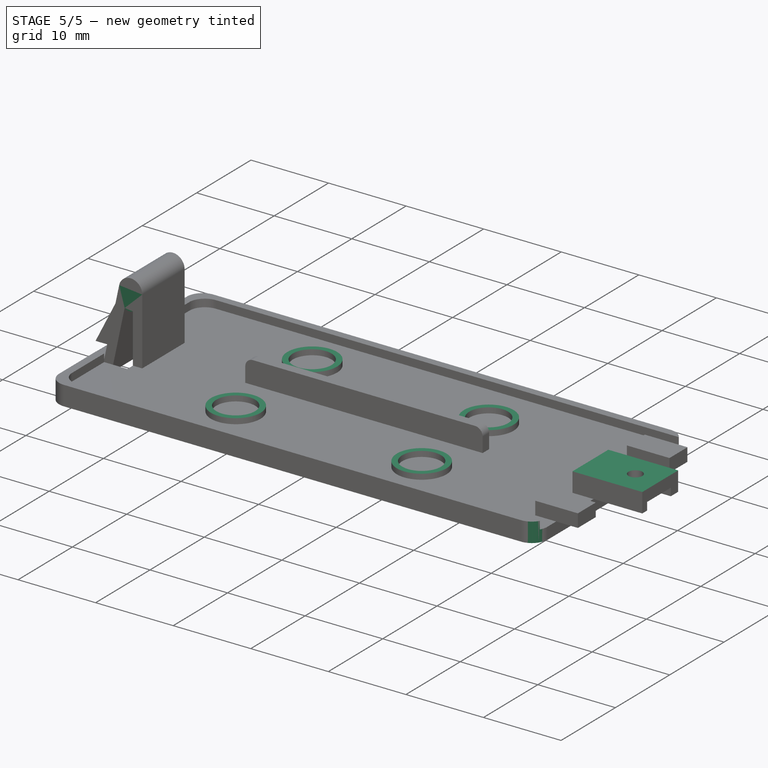
[diagram: stage 5 of 5 — iso view after this stage's code; geometry added in this stage tinted green]
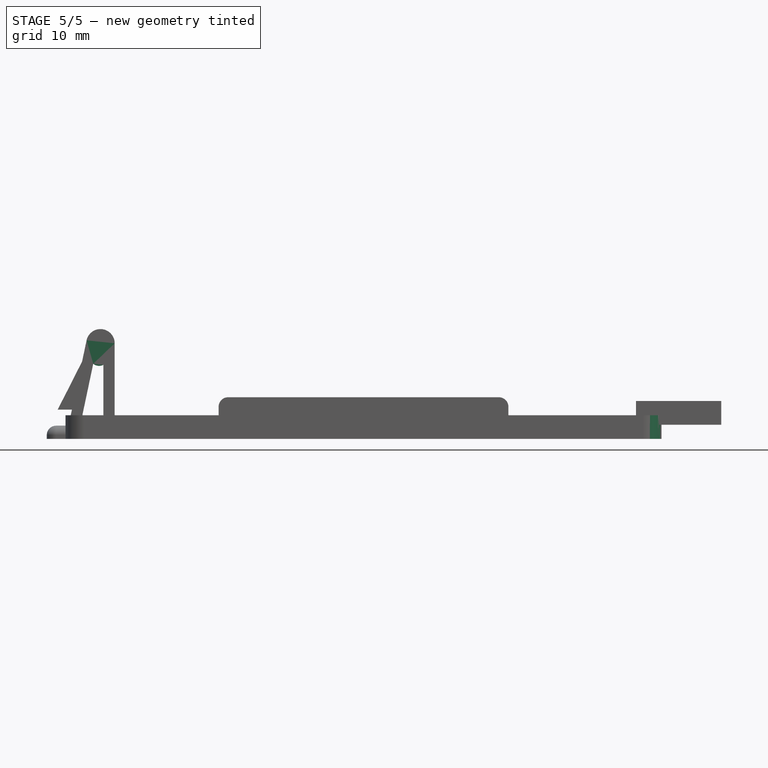
[diagram: stage 5 of 5 — front view after this stage's code; geometry added in this stage tinted green]
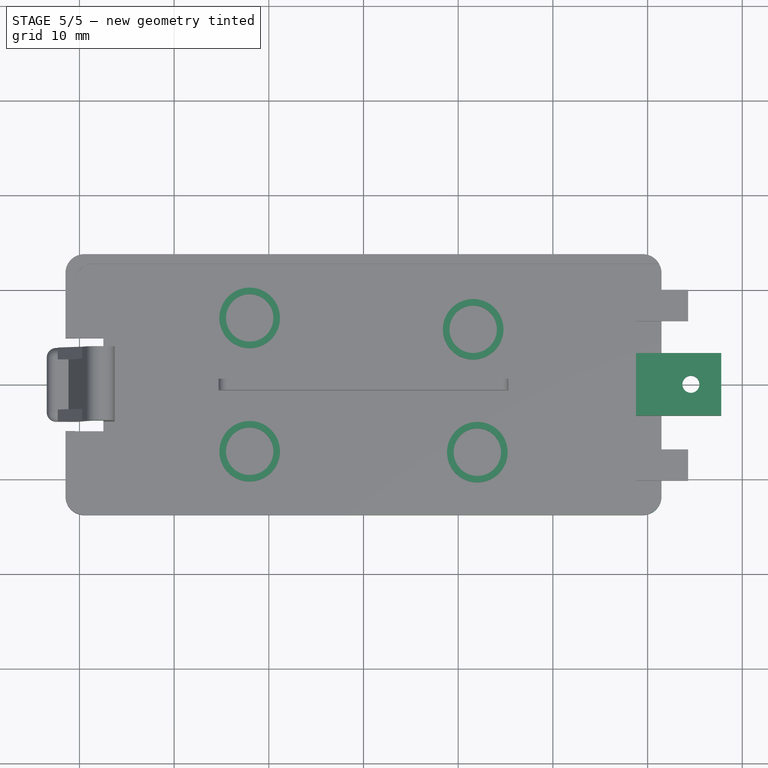
[diagram: stage 5 of 5 — top view after this stage's code; geometry added in this stage tinted green]
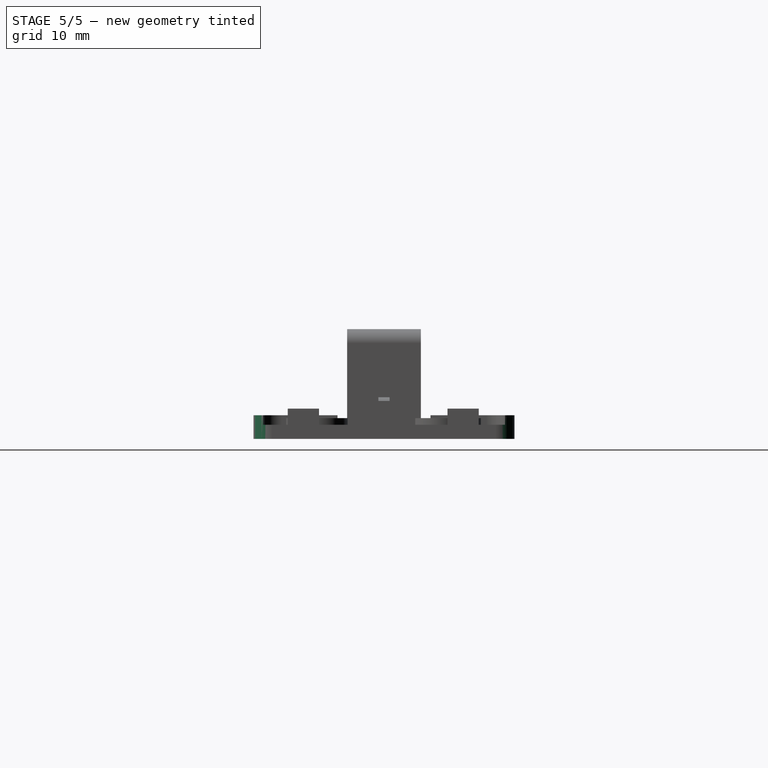
[diagram: stage 5 of 5 — right view after this stage's code; geometry added in this stage tinted green]
FEATURE [PartDesign::Fillet] Fillet005
  Base = -> Pocket008 [Edge122]
  Radius = 2
FEATURE [PartDesign::Fillet] Fillet006
  Base = -> Fillet005 [Edge38]
  Radius = 2
FEATURE [Sketcher::SketchObject] Sketch018
  Placement = pos=(15.3,0,0) rot=(0.57735,0.57735,0.57735;2.0944rad)
  Support = -> Fillet006 [Face33]
  sketch-geometry (8):
    g0: LineSegment StartX=-10.9381 StartY=12.3998 StartZ=0 EndX=-2.51592 EndY=12.3998 EndZ=0
    g1: LineSegment StartX=-2.51592 StartY=12.3998 StartZ=0 EndX=-2.51592 EndY=2.2 EndZ=0
    g2: LineSegment StartX=-2.51592 StartY=2.2 StartZ=0 EndX=-10.9381 EndY=2.2 EndZ=0
    g3: LineSegment StartX=-10.9381 StartY=2.2 StartZ=0 EndX=-10.9381 EndY=12.3998 EndZ=0
    g4: LineSegment StartX=10.9381 StartY=12.3998 StartZ=0 EndX=2.51592 EndY=12.3998 EndZ=0
    g5: LineSegment StartX=2.51592 StartY=12.3998 StartZ=0 EndX=2.51592 EndY=2.2 EndZ=0
    g6: LineSegment StartX=2.51592 StartY=2.2 StartZ=0 EndX=10.9381 EndY=2.2 EndZ=0
    g7: LineSegment StartX=10.9381 StartY=2.2 StartZ=0 EndX=10.9381 EndY=12.3998 EndZ=0
  constraints (17):
    c: Coincident(g0,g1)
    c: Coincident(g1,g2)
    c: Coincident(g2,g3)
    c: Coincident(g3,g0)
    c: Horizontal(g0)
    c: Horizontal(g2)
    c: Vertical(g1)
    c: Vertical(g3)
    c: DistanceY(g-1,g2) = 2.2
    c: Coincident(g4,g5)
    c: Coincident(g5,g6)
    c: Coincident(g6,g7)
    c: Coincident(g7,g4)
    c: Horizontal(g4)
    c: Horizontal(g6)
    c: Vertical(g5)
    c: Vertical(g7)
FEATURE [PartDesign::Pocket] Pocket009
  Length = 31
  Sketch = -> Sketch018
  Type = 0
FEATURE [Sketcher::SketchObject] Sketch019
  ExternalGeometry = -> [Pocket009]
  Placement = pos=(0,-3.9,0) rot=(1,0,0;1.5708rad)
  Support = -> Pocket009 [Face14]
  sketch-geometry (1):
    g0: Circle CenterX=-27.775 CenterY=10.1 CenterZ=0 NormalX=0 NormalY=0 NormalZ=1 Radius=1.5
  constraints (2):
    c: Coincident(g0,g-3)
    c: Equal(g-3,g0)
FEATURE [PartDesign::Pad] Pad009
  Length = 7.8
  Length2 = 100
  Reversed = true
  Sketch = -> Sketch019
  Type = 0
FEATURE [Sketcher::SketchObject] Sketch020
  ExternalGeometry = -> [Pad009]
  Placement = pos=(0,-3.3,0) rot=(1,0,0;1.5708rad)
  Support = -> Pad009 [Face11]
  sketch-geometry (4):
    g0: LineSegment StartX=28.3138 StartY=5.35137 StartZ=0 EndX=38.3919 EndY=5.35137 EndZ=0
    g1: LineSegment StartX=38.3919 StartY=5.35137 StartZ=0 EndX=38.3919 EndY=4 EndZ=0
    g2: LineSegment StartX=38.3919 StartY=4 StartZ=0 EndX=28.3138 EndY=4 EndZ=0
    g3: LineSegment StartX=28.3138 StartY=4 StartZ=0 EndX=28.3138 EndY=5.35137 EndZ=0
  constraints (10):
    c: Coincident(g0,g1)
    c: Coincident(g1,g2)
    c: Coincident(g2,g3)
    c: Coincident(g3,g0)
    c: Horizontal(g0)
    c: Horizontal(g2)
    c: Vertical(g1)
    c: Vertical(g3)
    c: DistanceY(g-4,g-3) = 3
    c: DistanceY(g-4,g1) = 2.5
FEATURE [PartDesign::Pocket] Pocket010
  Length = 5
  Sketch = -> Sketch020
  Type = 1
FEATURE [Sketcher::SketchObject] Sketch021
  ExternalGeometry = -> [Pocket010]
  Placement = pos=(0,-3.9,0) rot=(1,0,0;1.5708rad)
  Support = -> Pocket010 [Face14]
  sketch-geometry (1):
    g0: Circle CenterX=-27.9239 CenterY=8.67729 CenterZ=0 NormalX=0 NormalY=0 NormalZ=1 Radius=0.964496
  constraints (1):
    c: Symmetric(g-4,g-4,g0)
FEATURE [PartDesign::Pad] Pad010
  Length = 7.8
  Length2 = 100
  Reversed = true
  Sketch = -> Sketch021
  Type = 0
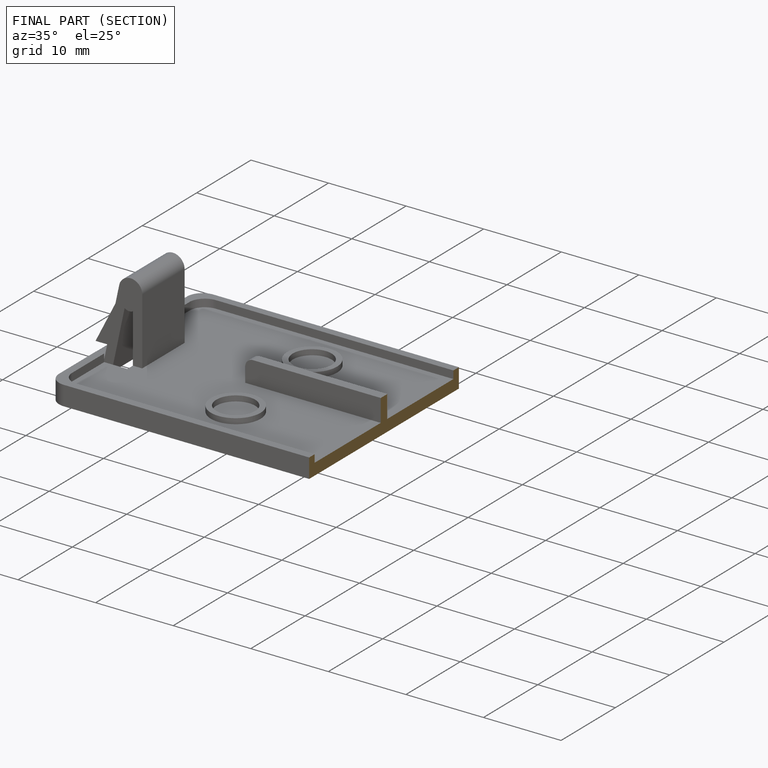
[diagram: finished part — half-section view (interior)]
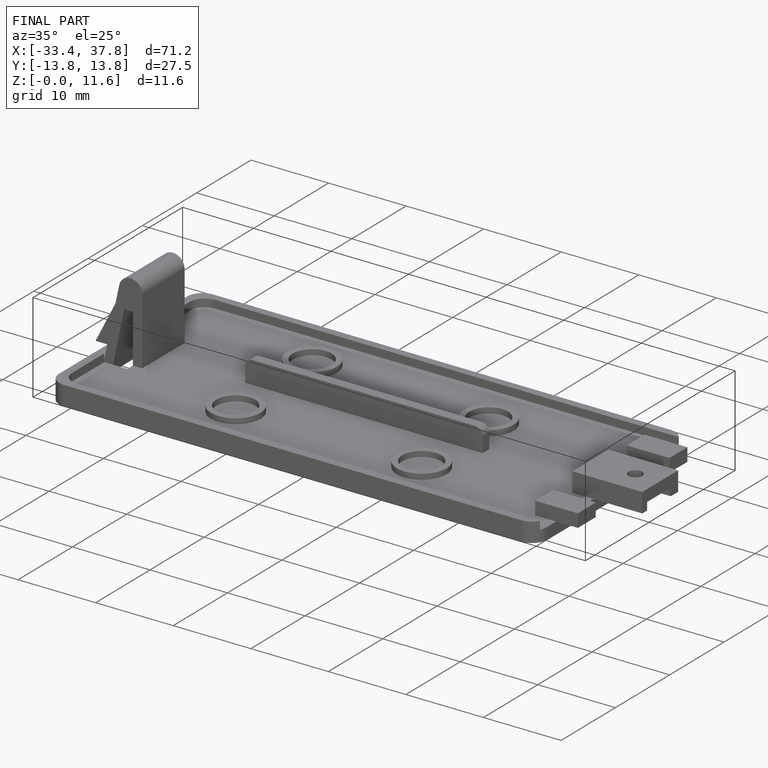
[diagram: finished part — iso view with bounding-box wireframe]
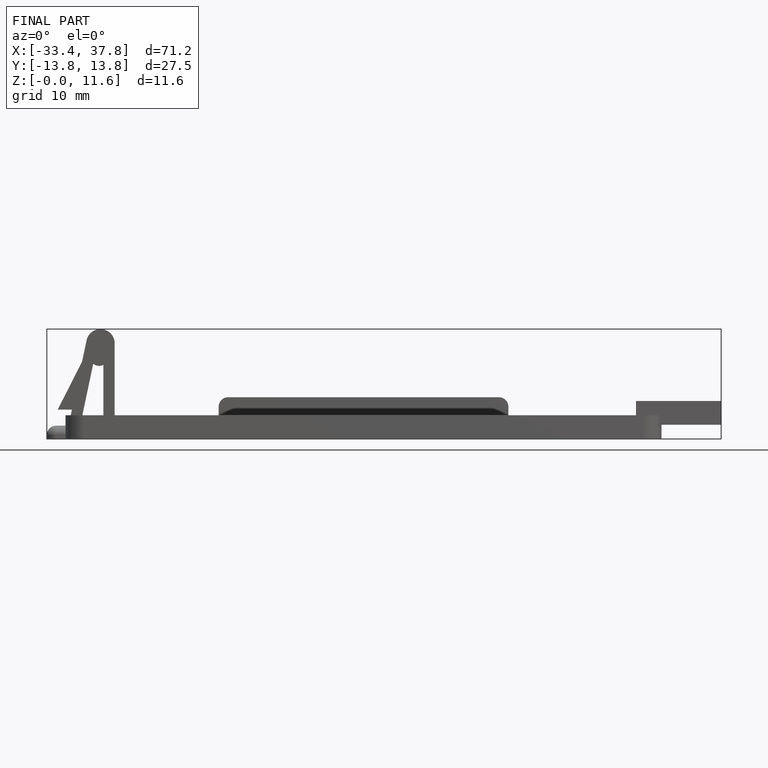
[diagram: finished part — front view with bounding-box wireframe]
